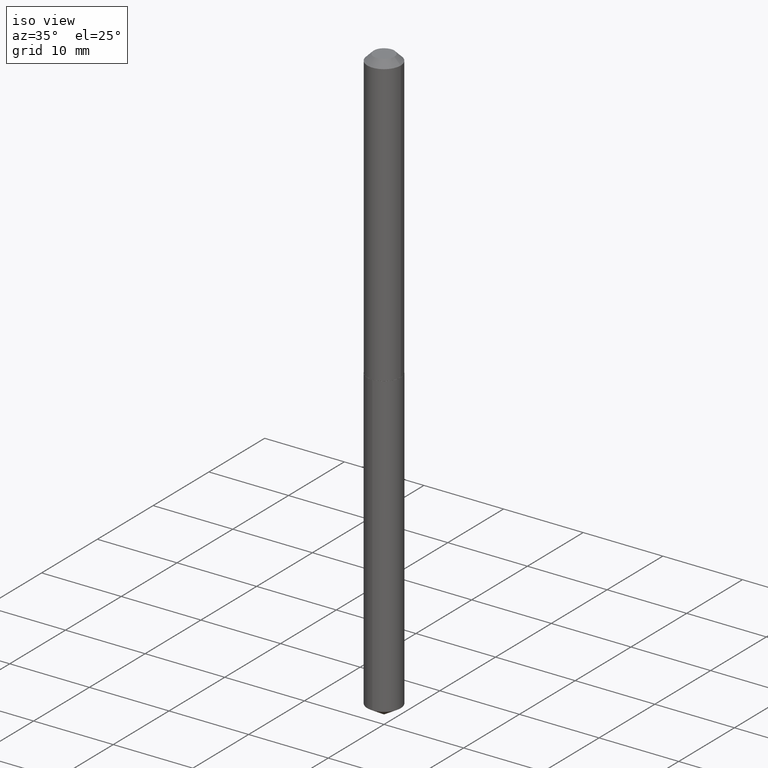
[diagram: clean part render]
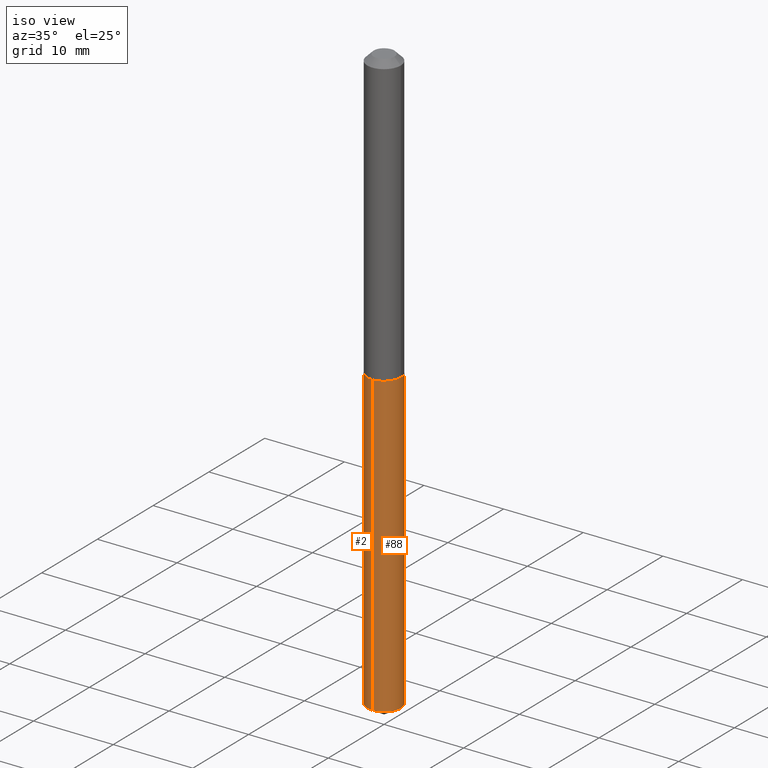
[diagram: same view with one multi-face feature highlighted, each face labeled with its STEP entity id]
A machine part, iso view. The highlighted faces form ONE feature: a constant-radius fillet chain: 2 tangent blend faces with common blend radius 2.1006 mm. The faces share edges in the B-rep.
Their STEP definitions:
[1] entity #88 (Cylinder):
#10 = LINE ( 'NONE', #101, #250 ) ;
#21 = DIRECTION ( 'NONE',  ( -6.982962677686265922E-15, -1.000000000000000000, 3.303322846026920670E-15 ) ) ;
#27 = LINE ( 'NONE', #297, #86 ) ;
#30 = EDGE_CURVE ( 'NONE', #70, #146, #10, .T. ) ;
#32 = ORIENTED_EDGE ( 'NONE', *, *, #164, .F. ) ;
#35 = DIRECTION ( 'NONE',  ( -2.445410719042540052E-29, 3.491564522937458728E-15, 1.000000000000000000 ) ) ;
#39 = VERTEX_POINT ( 'NONE', #254 ) ;
#53 = CARTESIAN_POINT ( 'NONE',  ( 3.485526689455674098E-29, -4.976408352253134499E-15, -1.425299999999999789 ) ) ;
#60 = DIRECTION ( 'NONE',  ( -6.982962677686265922E-15, -1.000000000000000000, 3.303322846026920670E-15 ) ) ;
#70 = VERTEX_POINT ( 'NONE', #266 ) ;
#86 = VECTOR ( 'NONE', #238, 39.37007874015748143 ) ;
#88 = ADVANCED_FACE ( 'NONE', ( #270 ), #208, .T. ) ;
#97 = EDGE_CURVE ( 'NONE', #39, #157, #27, .T. ) ;
#101 = CARTESIAN_POINT ( 'NONE',  ( -5.774910134446193783E-16, -0.08270000000000496398, -1.425299999999999345 ) ) ;
#111 = ORIENTED_EDGE ( 'NONE', *, *, #97, .T. ) ;
#112 = CIRCLE ( 'NONE', #345, 0.08269999999999999574 ) ;
#132 = EDGE_CURVE ( 'NONE', #70, #39, #112, .T. ) ;
#138 = CARTESIAN_POINT ( 'NONE',  ( 5.876188424736740181E-16, 0.08269999999999502749, -1.425300000000000011 ) ) ;
#146 = VERTEX_POINT ( 'NONE', #373 ) ;
#157 = VERTEX_POINT ( 'NONE', #138 ) ;
#164 = EDGE_CURVE ( 'NONE', #146, #157, #197, .T. ) ;
#173 = AXIS2_PLACEMENT_3D ( 'NONE', #53, #300, #60 ) ;
#197 = CIRCLE ( 'NONE', #251, 0.08269999999999999574 ) ;
#199 = EDGE_LOOP ( 'NONE', ( #278, #111, #32, #325 ) ) ;
#208 = CYLINDRICAL_SURFACE ( 'NONE', #173, 0.08269999999999999574 ) ;
#238 = DIRECTION ( 'NONE',  ( -2.445410719042540333E-29, 3.491564522937458728E-15, 1.000000000000000000 ) ) ;
#250 = VECTOR ( 'NONE', #316, 39.37007874015748143 ) ;
#251 = AXIS2_PLACEMENT_3D ( 'NONE', #284, #286, #21 ) ;
#254 = CARTESIAN_POINT ( 'NONE',  ( 5.876188424736738209E-16, 0.08269999999998987883, -2.903108826806422016 ) ) ;
#266 = CARTESIAN_POINT ( 'NONE',  ( -5.774910134445832879E-16, -0.08270000000001015428, -2.903108826806421128 ) ) ;
#270 = FACE_OUTER_BOUND ( 'NONE', #199, .T. ) ;
#276 = DIRECTION ( 'NONE',  ( -6.982962677686265922E-15, -1.000000000000000000, 6.606645692053841341E-15 ) ) ;
#278 = ORIENTED_EDGE ( 'NONE', *, *, #132, .T. ) ;
#284 = CARTESIAN_POINT ( 'NONE',  ( 3.485526689455674098E-29, -4.976408352253134499E-15, -1.425299999999999789 ) ) ;
#286 = DIRECTION ( 'NONE',  ( -2.445410719042540052E-29, 3.491564522937458728E-15, 1.000000000000000000 ) ) ;
#297 = CARTESIAN_POINT ( 'NONE',  ( 5.876188424736375333E-16, 0.08269999999999502749, -1.425300000000000011 ) ) ;
#300 = DIRECTION ( 'NONE',  ( -2.445410719042540052E-29, 3.491564522937458728E-15, 1.000000000000000000 ) ) ;
#309 = CARTESIAN_POINT ( 'NONE',  ( 7.099376235223778941E-29, -1.013627322361426597E-14, -2.903108826806421572 ) ) ;
#316 = DIRECTION ( 'NONE',  ( -2.445410719042540333E-29, 3.491564522937458728E-15, 1.000000000000000000 ) ) ;
#325 = ORIENTED_EDGE ( 'NONE', *, *, #30, .F. ) ;
#345 = AXIS2_PLACEMENT_3D ( 'NONE', #309, #35, #276 ) ;
#373 = CARTESIAN_POINT ( 'NONE',  ( -5.774910134446193783E-16, -0.08270000000000496398, -1.425299999999999345 ) ) ;
[2] entity #2 (Cylinder):
#2 = ADVANCED_FACE ( 'NONE', ( #378 ), #289, .T. ) ;
#10 = LINE ( 'NONE', #101, #250 ) ;
#27 = LINE ( 'NONE', #297, #86 ) ;
#30 = EDGE_CURVE ( 'NONE', #70, #146, #10, .T. ) ;
#39 = VERTEX_POINT ( 'NONE', #254 ) ;
#70 = VERTEX_POINT ( 'NONE', #266 ) ;
#86 = VECTOR ( 'NONE', #238, 39.37007874015748143 ) ;
#92 = ORIENTED_EDGE ( 'NONE', *, *, #374, .T. ) ;
#93 = CIRCLE ( 'NONE', #351, 0.08269999999999999574 ) ;
#97 = EDGE_CURVE ( 'NONE', #39, #157, #27, .T. ) ;
#98 = EDGE_LOOP ( 'NONE', ( #332, #92, #350, #209 ) ) ;
#101 = CARTESIAN_POINT ( 'NONE',  ( -5.774910134446193783E-16, -0.08270000000000496398, -1.425299999999999345 ) ) ;
#138 = CARTESIAN_POINT ( 'NONE',  ( 5.876188424736740181E-16, 0.08269999999999502749, -1.425300000000000011 ) ) ;
#146 = VERTEX_POINT ( 'NONE', #373 ) ;
#150 = DIRECTION ( 'NONE',  ( -2.445410719042540052E-29, 3.491564522937458728E-15, 1.000000000000000000 ) ) ;
#157 = VERTEX_POINT ( 'NONE', #138 ) ;
#186 = AXIS2_PLACEMENT_3D ( 'NONE', #348, #202, #317 ) ;
#187 = AXIS2_PLACEMENT_3D ( 'NONE', #237, #150, #356 ) ;
#202 = DIRECTION ( 'NONE',  ( -2.445410719042540052E-29, 3.491564522937458728E-15, 1.000000000000000000 ) ) ;
#209 = ORIENTED_EDGE ( 'NONE', *, *, #355, .F. ) ;
#234 = CARTESIAN_POINT ( 'NONE',  ( 3.485526689455674098E-29, -4.976408352253134499E-15, -1.425299999999999789 ) ) ;
#237 = CARTESIAN_POINT ( 'NONE',  ( 7.099376235223778941E-29, -1.013627322361426597E-14, -2.903108826806421572 ) ) ;
#238 = DIRECTION ( 'NONE',  ( -2.445410719042540333E-29, 3.491564522937458728E-15, 1.000000000000000000 ) ) ;
#250 = VECTOR ( 'NONE', #316, 39.37007874015748143 ) ;
#254 = CARTESIAN_POINT ( 'NONE',  ( 5.876188424736738209E-16, 0.08269999999998987883, -2.903108826806422016 ) ) ;
#266 = CARTESIAN_POINT ( 'NONE',  ( -5.774910134445832879E-16, -0.08270000000001015428, -2.903108826806421128 ) ) ;
#289 = CYLINDRICAL_SURFACE ( 'NONE', #186, 0.08269999999999999574 ) ;
#297 = CARTESIAN_POINT ( 'NONE',  ( 5.876188424736375333E-16, 0.08269999999999502749, -1.425300000000000011 ) ) ;
#316 = DIRECTION ( 'NONE',  ( -2.445410719042540333E-29, 3.491564522937458728E-15, 1.000000000000000000 ) ) ;
#317 = DIRECTION ( 'NONE',  ( -6.982962677686265922E-15, -1.000000000000000000, 3.303322846026920670E-15 ) ) ;
#328 = DIRECTION ( 'NONE',  ( -6.982962677686265922E-15, -1.000000000000000000, 3.303322846026920670E-15 ) ) ;
#332 = ORIENTED_EDGE ( 'NONE', *, *, #97, .F. ) ;
#348 = CARTESIAN_POINT ( 'NONE',  ( 3.485526689455674098E-29, -4.976408352253134499E-15, -1.425299999999999789 ) ) ;
#350 = ORIENTED_EDGE ( 'NONE', *, *, #30, .T. ) ;
#351 = AXIS2_PLACEMENT_3D ( 'NONE', #234, #354, #328 ) ;
#354 = DIRECTION ( 'NONE',  ( -2.445410719042540052E-29, 3.491564522937458728E-15, 1.000000000000000000 ) ) ;
#355 = EDGE_CURVE ( 'NONE', #157, #146, #93, .T. ) ;
#356 = DIRECTION ( 'NONE',  ( -6.982962677686265922E-15, -1.000000000000000000, 6.606645692053841341E-15 ) ) ;
#368 = CIRCLE ( 'NONE', #187, 0.08269999999999999574 ) ;
#373 = CARTESIAN_POINT ( 'NONE',  ( -5.774910134446193783E-16, -0.08270000000000496398, -1.425299999999999345 ) ) ;
#374 = EDGE_CURVE ( 'NONE', #39, #70, #368, .T. ) ;
#378 = FACE_OUTER_BOUND ( 'NONE', #98, .T. ) ;